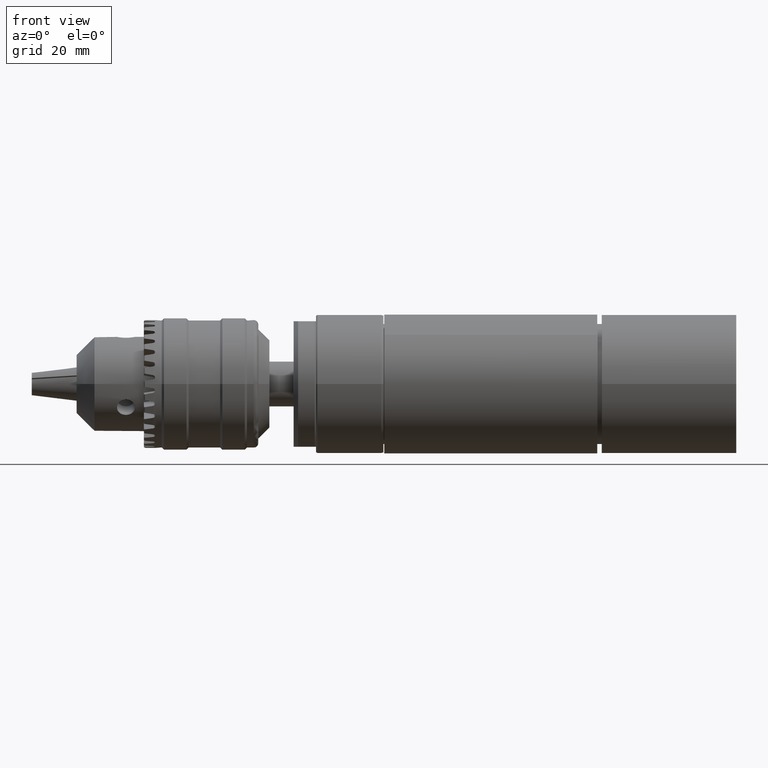
[diagram: clean part render]
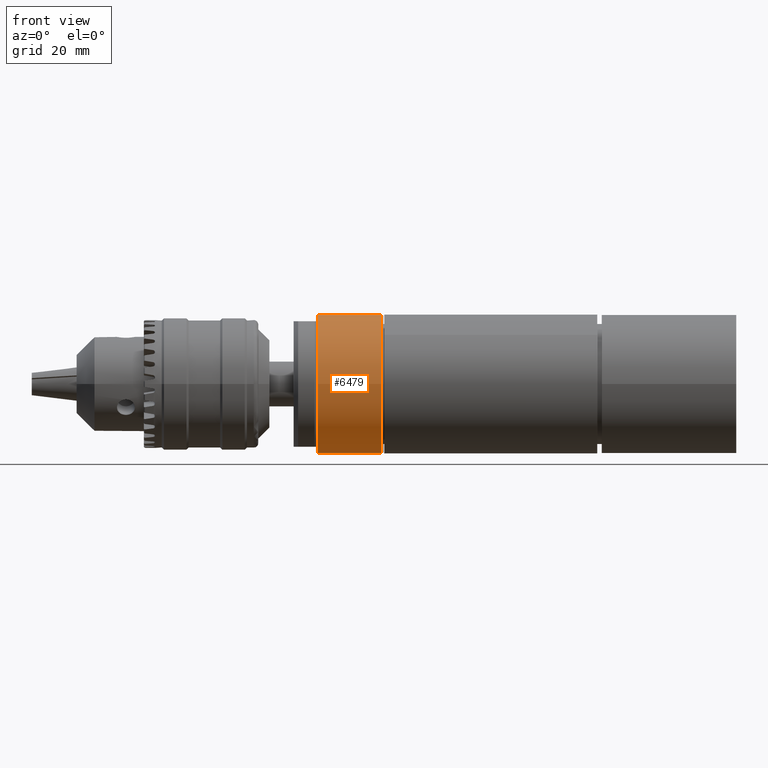
[diagram: same view with one face highlighted and labeled with its STEP entity id]
A machine part, front view. The second image highlights one B-rep face of the part: STEP entity #6479.
In plain terms, the highlighted cylindrical surface (bore or boss wall) has radius 15.5 mm, axis along (1, 0, 0).
Its self-contained STEP definition (entity closure, byte-faithful):
#477=LINE('',#9942,#972);
#972=VECTOR('',#7890,15.5);
#1273=CYLINDRICAL_SURFACE('',#6883,15.5);
#1795=FACE_OUTER_BOUND('',#2154,.T.);
#2154=EDGE_LOOP('',(#4798,#4799,#4800,#4801,#4802,#4803));
#2450=CIRCLE('',#6881,15.5);
#2451=CIRCLE('',#6882,15.5);
#2452=CIRCLE('',#6884,15.5);
#2453=CIRCLE('',#6885,15.5);
#2854=VERTEX_POINT('',#9932);
#2855=VERTEX_POINT('',#9933);
#2856=VERTEX_POINT('',#9938);
#2857=VERTEX_POINT('',#9939);
#3577=EDGE_CURVE('',#2854,#2855,#2450,.T.);
#3578=EDGE_CURVE('',#2855,#2854,#2451,.T.);
#3580=EDGE_CURVE('',#2856,#2857,#2452,.T.);
#3581=EDGE_CURVE('',#2857,#2856,#2453,.T.);
#3582=EDGE_CURVE('',#2857,#2855,#477,.T.);
#4798=ORIENTED_EDGE('',*,*,#3580,.F.);
#4799=ORIENTED_EDGE('',*,*,#3581,.F.);
#4800=ORIENTED_EDGE('',*,*,#3582,.T.);
#4801=ORIENTED_EDGE('',*,*,#3578,.T.);
#4802=ORIENTED_EDGE('',*,*,#3577,.T.);
#4803=ORIENTED_EDGE('',*,*,#3582,.F.);
#6479=ADVANCED_FACE('',(#1795),#1273,.T.);
#6881=AXIS2_PLACEMENT_3D('',#9934,#7879,#7880);
#6882=AXIS2_PLACEMENT_3D('',#9935,#7881,#7882);
#6883=AXIS2_PLACEMENT_3D('',#9937,#7884,#7885);
#6884=AXIS2_PLACEMENT_3D('',#9940,#7886,#7887);
#6885=AXIS2_PLACEMENT_3D('',#9941,#7888,#7889);
#7879=DIRECTION('center_axis',(1.,9.54437786248573E-17,1.48561984064731E-15));
#7880=DIRECTION('ref_axis',(-6.38994711948555E-17,1.,-1.7185860833431E-16));
#7881=DIRECTION('center_axis',(1.,9.54437786248573E-17,1.48561984064731E-15));
#7882=DIRECTION('ref_axis',(-6.38994711948555E-17,1.,-1.7185860833431E-16));
#7884=DIRECTION('center_axis',(1.,9.54437786248573E-17,1.48561984064731E-15));
#7885=DIRECTION('ref_axis',(-6.38994711948555E-17,1.,-1.7185860833431E-16));
#7886=DIRECTION('center_axis',(1.,9.54437786248573E-17,1.48561984064731E-15));
#7887=DIRECTION('ref_axis',(-6.38994711948555E-17,1.,-1.7185860833431E-16));
#7888=DIRECTION('center_axis',(1.,9.54437786248573E-17,1.48561984064731E-15));
#7889=DIRECTION('ref_axis',(-6.38994711948555E-17,1.,-1.7185860833431E-16));
#7890=DIRECTION('',(-1.,-9.54437786248573E-17,-1.48561984064731E-15));
#9932=CARTESIAN_POINT('',(-63.3999999999999,15.5,5.20997672624897E-15));
#9933=CARTESIAN_POINT('',(-63.3999999999999,-15.5,8.63939104593417E-15));
#9934=CARTESIAN_POINT('Origin',(-63.3999999999999,5.05852026711744E-16,
7.87378515543077E-15));
#9935=CARTESIAN_POINT('Origin',(-63.3999999999999,5.05852026711744E-16,
7.87378515543077E-15));
#9937=CARTESIAN_POINT('Origin',(-56.2999999999999,1.18350285494823E-15,
1.84216860240267E-14));
#9938=CARTESIAN_POINT('',(-49.1999999999999,15.5,2.63057784634408E-14));
#9939=CARTESIAN_POINT('',(-49.1999999999999,-15.5,2.9735192783126E-14));
#9940=CARTESIAN_POINT('Origin',(-49.1999999999999,1.86115368318472E-15,
2.89695868926226E-14));
#9941=CARTESIAN_POINT('Origin',(-49.1999999999999,1.86115368318472E-15,
2.89695868926226E-14));
#9942=CARTESIAN_POINT('',(-56.2999999999999,-15.5,1.91872919145301E-14));